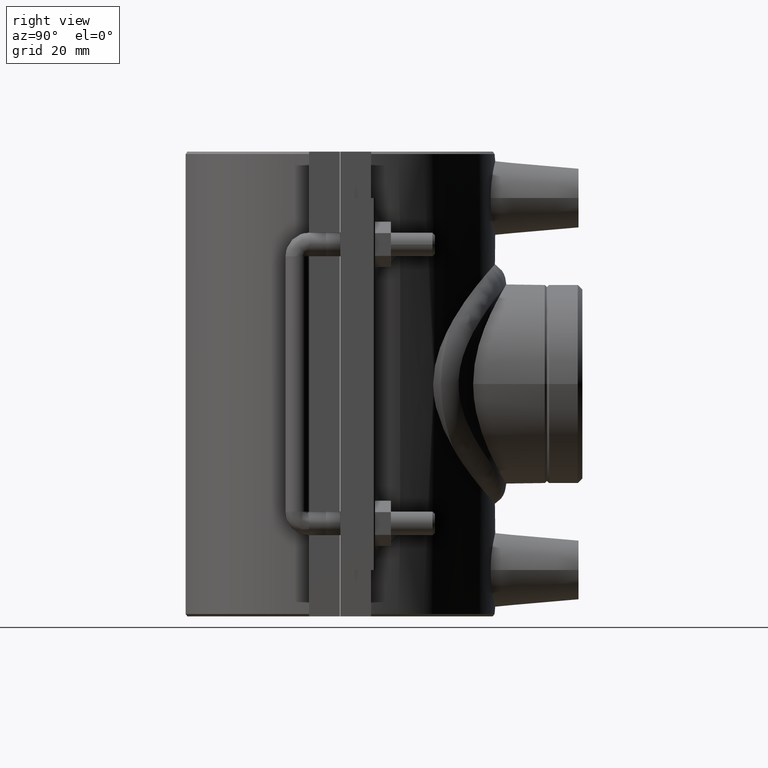
[diagram: clean part render]
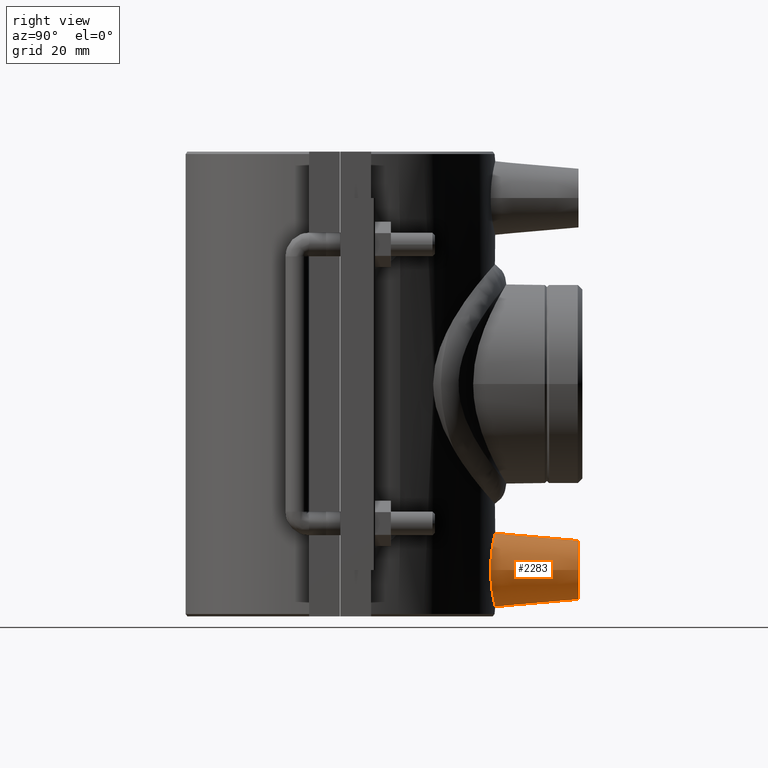
[diagram: same view with one face highlighted and labeled with its STEP entity id]
A machine part, right view. The second image highlights one B-rep face of the part: STEP entity #2283.
In plain terms, the highlighted conical surface has half-angle 5 deg.
Its self-contained STEP definition (entity closure, byte-faithful):
#20=CONICAL_SURFACE('',#2444,7.5,5.);
#104=FACE_BOUND('',#375,.T.);
#154=B_SPLINE_CURVE_WITH_KNOTS('',3,(#3748,#3749,#3750,#3751,#3752,#3753,
#3754,#3755,#3756,#3757,#3758,#3759,#3760,#3761,#3762,#3763,#3764,#3765,
#3766,#3767,#3768,#3769,#3770,#3771,#3772,#3773,#3774,#3775,#3776,#3777,
#3778,#3779,#3780,#3781),.UNSPECIFIED.,.T.,.F.,(4,2,2,2,2,2,2,2,2,2,2,2,
2,2,2,2,4),(0.,0.356014998471948,0.712029996943897,1.06709419230473,1.42215838766556,
1.7772225830264,2.13228677838723,2.48830177685918,2.84431677533113,3.20033177380308,
3.55634677227503,3.91141096763586,4.2664751629967,4.62153935835753,4.97660355371836,
5.33261855219031,5.68863355066226),.UNSPECIFIED.);
#219=FACE_OUTER_BOUND('',#374,.T.);
#374=EDGE_LOOP('',(#1704));
#375=EDGE_LOOP('',(#1705));
#909=CIRCLE('',#2443,7.5);
#1070=VERTEX_POINT('',#3744);
#1071=VERTEX_POINT('',#3747);
#1320=EDGE_CURVE('',#1070,#1070,#909,.T.);
#1321=EDGE_CURVE('',#1071,#1071,#154,.T.);
#1704=ORIENTED_EDGE('',*,*,#1320,.T.);
#1705=ORIENTED_EDGE('',*,*,#1321,.F.);
#2283=ADVANCED_FACE('',(#219,#104),#20,.T.);
#2443=AXIS2_PLACEMENT_3D('',#3745,#2811,#2812);
#2444=AXIS2_PLACEMENT_3D('',#3746,#2813,#2814);
#2811=DIRECTION('center_axis',(0.,-1.,0.));
#2812=DIRECTION('ref_axis',(1.,0.,0.));
#2813=DIRECTION('center_axis',(0.,-1.,0.));
#2814=DIRECTION('ref_axis',(1.,0.,0.));
#3744=CARTESIAN_POINT('',(-7.5,60.5,-47.2));
#3745=CARTESIAN_POINT('Origin',(0.,60.5,-47.2));
#3746=CARTESIAN_POINT('Origin',(0.,60.5,-47.2));
#3747=CARTESIAN_POINT('',(9.44885677958251,38.2244650787809,-47.2));
#3748=CARTESIAN_POINT('Ctrl Pts',(9.44885677958251,38.2244650787809,-47.2));
#3749=CARTESIAN_POINT('Ctrl Pts',(9.44885677958251,38.2244650787809,-46.0132833384269));
#3750=CARTESIAN_POINT('Ctrl Pts',(9.20641468561252,38.2868444369384,-44.7524761973491));
#3751=CARTESIAN_POINT('Ctrl Pts',(8.23143659111838,38.5082325071646,-42.443271999074));
#3752=CARTESIAN_POINT('Ctrl Pts',(7.49923403788688,38.6636599373278,-41.3943922368591));
#3753=CARTESIAN_POINT('Ctrl Pts',(5.8213504145831,38.95157397346,-39.7451610866894));
#3754=CARTESIAN_POINT('Ctrl Pts',(4.76306580802814,39.1031880173406,-39.0320549957885));
#3755=CARTESIAN_POINT('Ctrl Pts',(2.44433362832233,39.3162986767516,-38.0852741919757));
#3756=CARTESIAN_POINT('Ctrl Pts',(1.18354731786945,39.375,-37.8518019830149));
#3757=CARTESIAN_POINT('Ctrl Pts',(-1.18354731786945,39.375,-37.8518019830149));
#3758=CARTESIAN_POINT('Ctrl Pts',(-2.44433362832232,39.3162986767516,-38.0852741919757));
#3759=CARTESIAN_POINT('Ctrl Pts',(-4.76306580802814,39.1031880173406,-39.0320549957885));
#3760=CARTESIAN_POINT('Ctrl Pts',(-5.8213504145831,38.95157397346,-39.7451610866894));
#3761=CARTESIAN_POINT('Ctrl Pts',(-7.49923403788688,38.6636599373278,-41.3943922368591));
#3762=CARTESIAN_POINT('Ctrl Pts',(-8.23143659111838,38.5082325071646,-42.443271999074));
#3763=CARTESIAN_POINT('Ctrl Pts',(-9.20641468561252,38.2868444369384,-44.7524761973491));
#3764=CARTESIAN_POINT('Ctrl Pts',(-9.44885677958251,38.2244650787809,-46.0132833384269));
#3765=CARTESIAN_POINT('Ctrl Pts',(-9.44885677958251,38.2244650787809,-48.3867166615732));
#3766=CARTESIAN_POINT('Ctrl Pts',(-9.20641468561252,38.2868444369384,-49.647523802651));
#3767=CARTESIAN_POINT('Ctrl Pts',(-8.23143659111838,38.5082325071646,-51.956728000926));
#3768=CARTESIAN_POINT('Ctrl Pts',(-7.49923403788688,38.6636599373278,-53.0056077631409));
#3769=CARTESIAN_POINT('Ctrl Pts',(-5.8213504145831,38.95157397346,-54.6548389133106));
#3770=CARTESIAN_POINT('Ctrl Pts',(-4.76306580802813,39.1031880173406,-55.3679450042115));
#3771=CARTESIAN_POINT('Ctrl Pts',(-2.44433362832232,39.3162986767516,-56.3147258080244));
#3772=CARTESIAN_POINT('Ctrl Pts',(-1.18354731786945,39.375,-56.5481980169852));
#3773=CARTESIAN_POINT('Ctrl Pts',(1.18354731786944,39.375,-56.5481980169852));
#3774=CARTESIAN_POINT('Ctrl Pts',(2.44433362832232,39.3162986767516,-56.3147258080244));
#3775=CARTESIAN_POINT('Ctrl Pts',(4.76306580802813,39.1031880173406,-55.3679450042115));
#3776=CARTESIAN_POINT('Ctrl Pts',(5.8213504145831,38.95157397346,-54.6548389133106));
#3777=CARTESIAN_POINT('Ctrl Pts',(7.49923403788687,38.6636599373278,-53.0056077631409));
#3778=CARTESIAN_POINT('Ctrl Pts',(8.23143659111838,38.5082325071646,-51.9567280009261));
#3779=CARTESIAN_POINT('Ctrl Pts',(9.20641468561252,38.2868444369384,-49.647523802651));
#3780=CARTESIAN_POINT('Ctrl Pts',(9.44885677958251,38.2244650787809,-48.3867166615732));
#3781=CARTESIAN_POINT('Ctrl Pts',(9.44885677958251,38.2244650787809,-47.2));